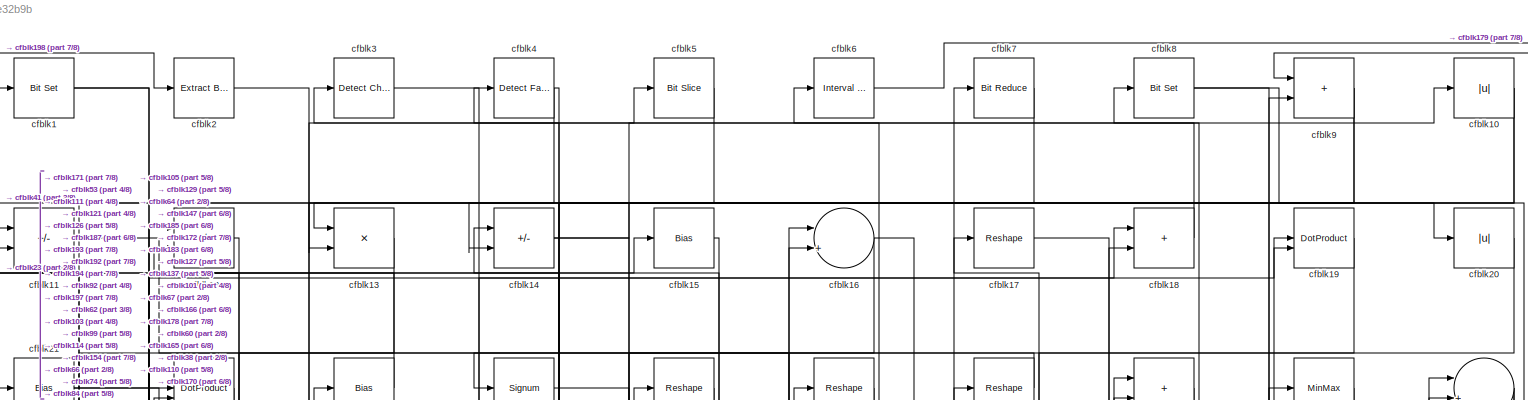
[diagram: root canvas - part 1/8, full width, top band]
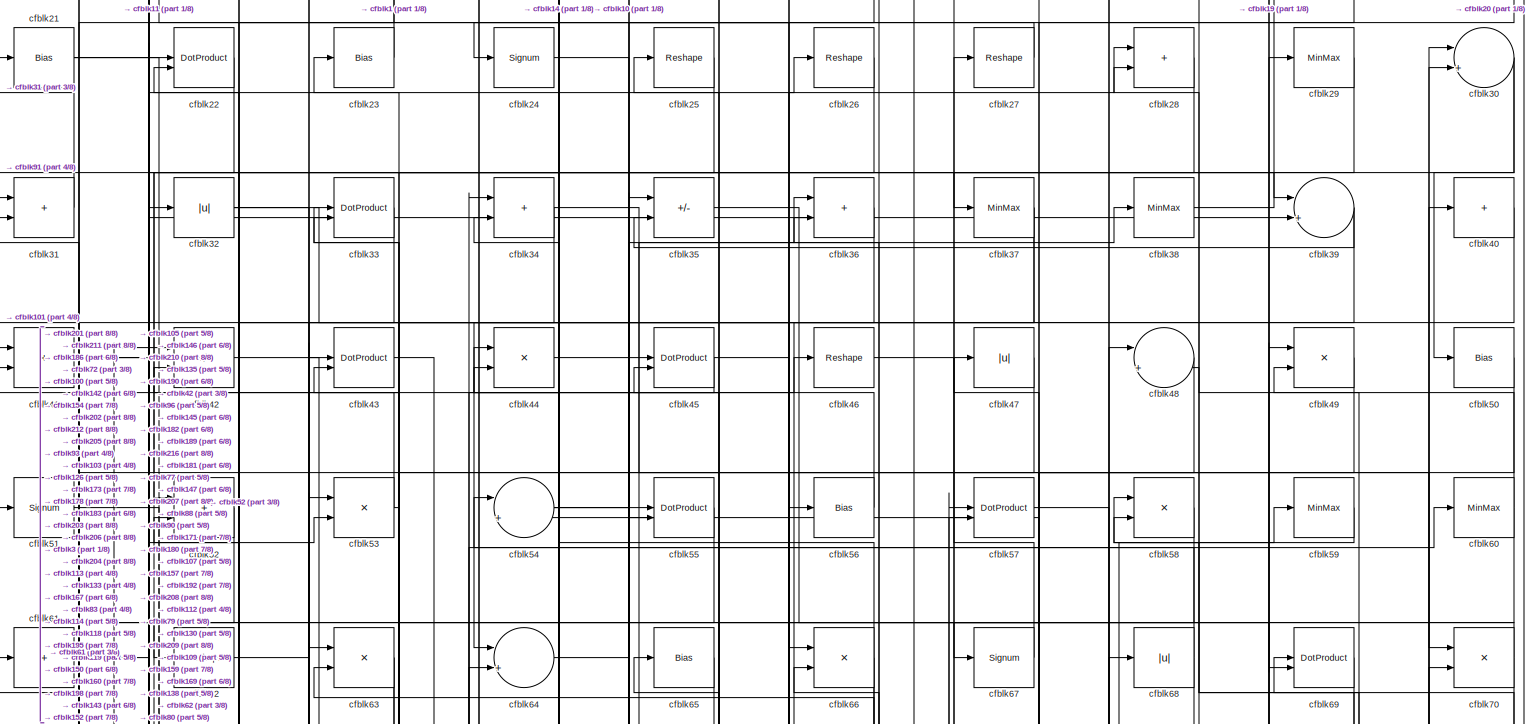
[diagram: root canvas - part 2/8, full width, top band]
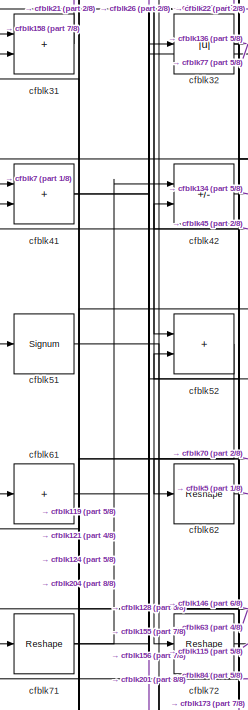
[diagram: root canvas - part 3/8, top left region]
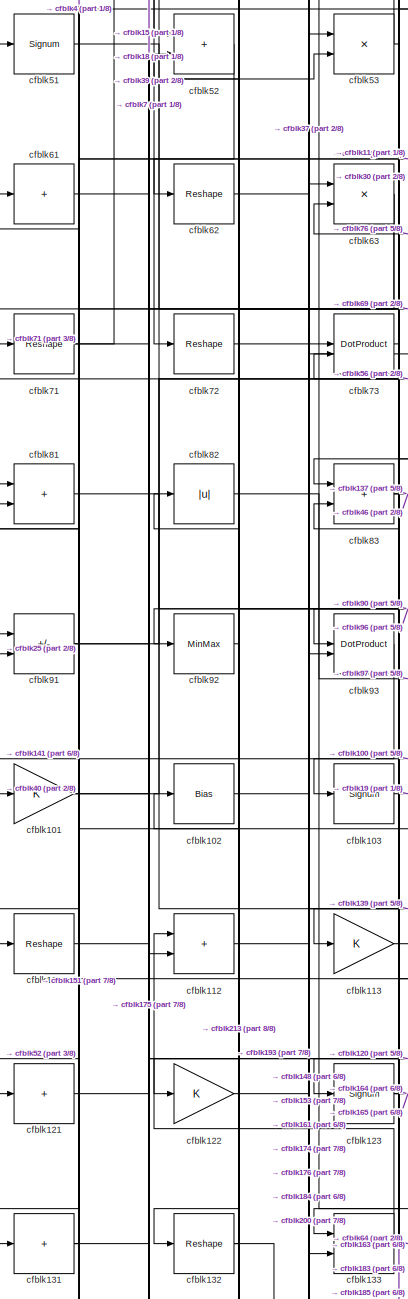
[diagram: root canvas - part 4/8, middle left region]
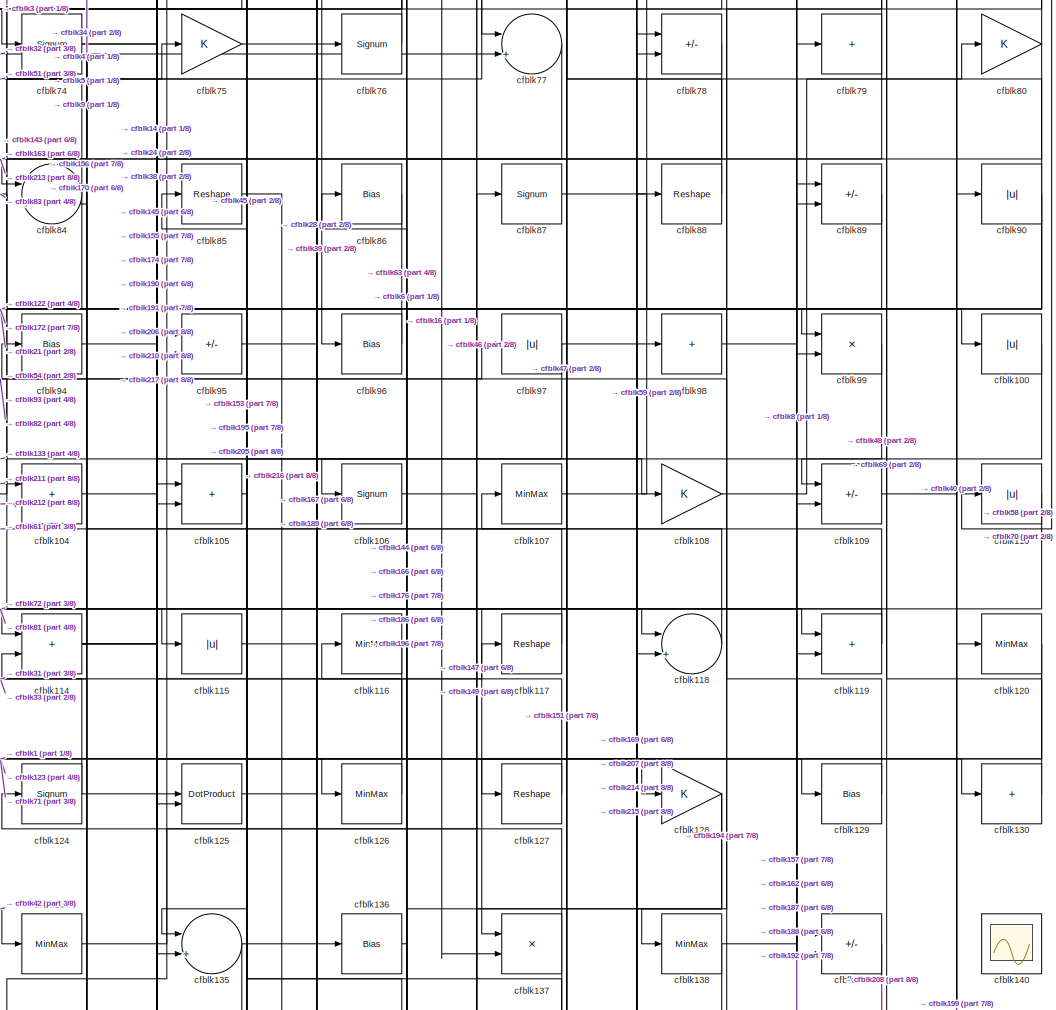
[diagram: root canvas - part 5/8, central region]
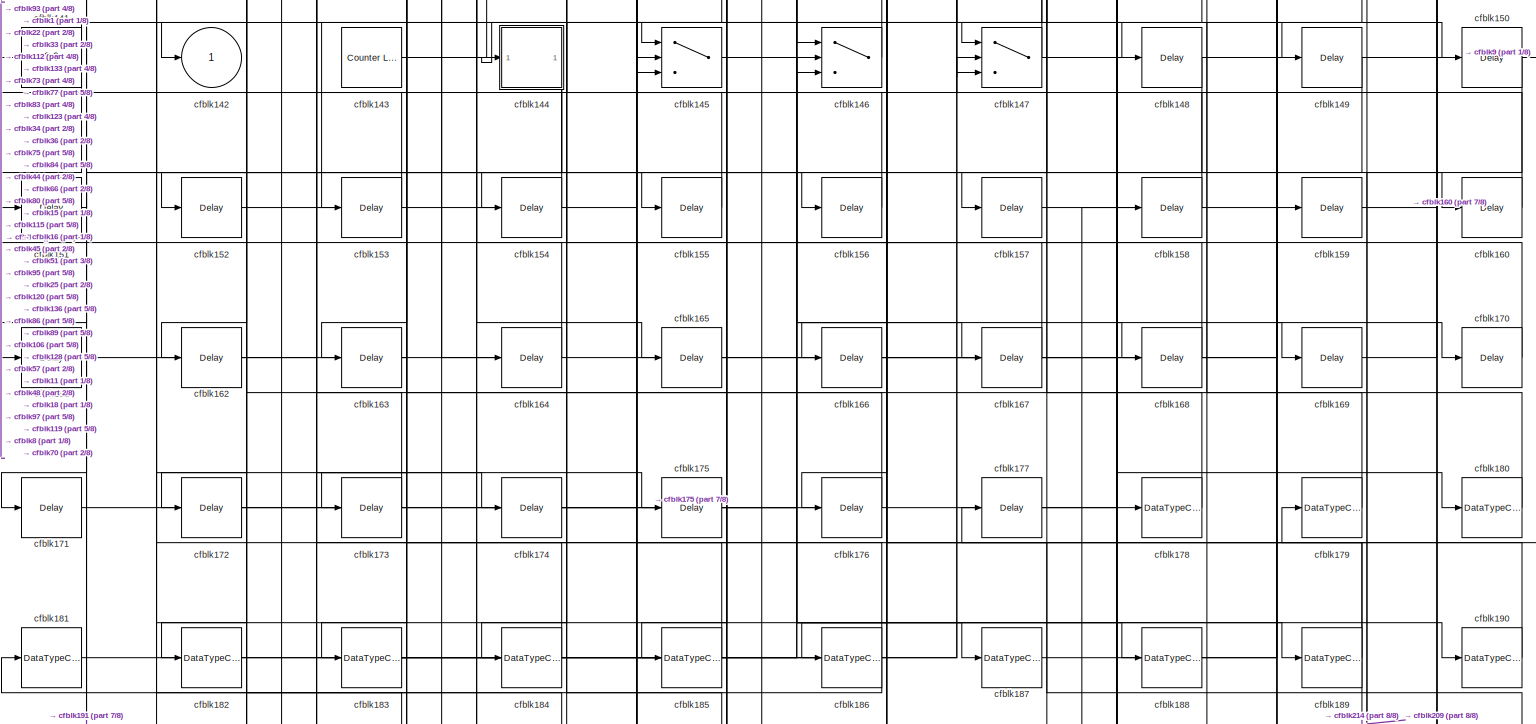
[diagram: root canvas - part 6/8, full width, bottom band]
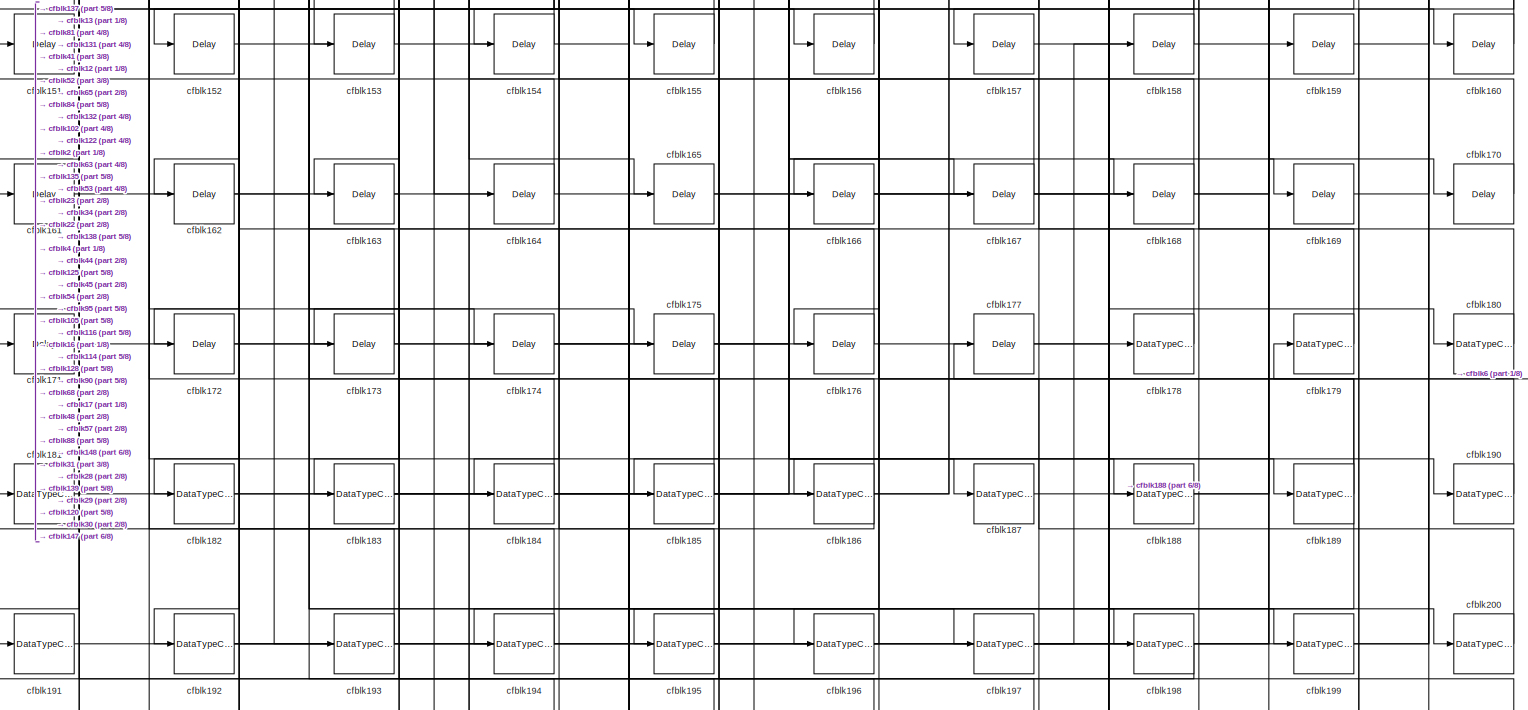
[diagram: root canvas - part 7/8, full width, bottom band]
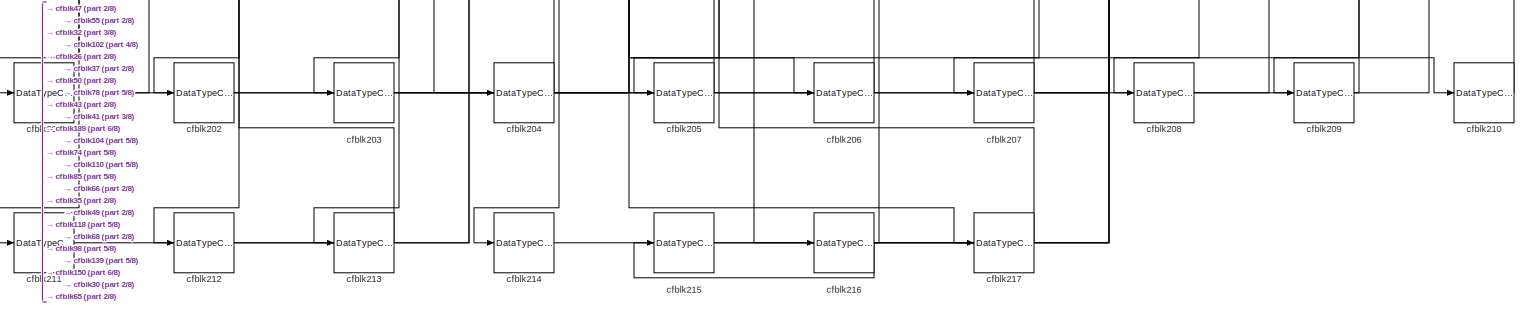
[diagram: root canvas - part 8/8, full width, bottom band]
MODEL slx_066282e32b9b
KIND model
CONFIG AbsTol = auto
CONFIG EnableMultiTasking = off
CONFIG FixedStep = auto
CONFIG MaxStep = auto
CONFIG MinStep = auto
CONFIG RelTol = 1e-3
CONFIG SampleTimeConstraint = Unconstrained
CONFIG SolverName = VariableStepAuto
CONFIG StartTime = 0.0
CONFIG StopTime = 10.0
BLOCK [Reference] cfblk1  REF=simulink/Logic and Bit
Operations/Bit Set
  LibrarySourceBlock = hdlsllib/Logic and Bit\nOperations/Bit Set
  SourceBlock = simulink/Logic and Bit\nOperations/Bit Set
  SourceType = Bit Set
BLOCK [Abs] cfblk10
  SaturateOnIntegerOverflow = off
BLOCK [Abs] cfblk100
  SaturateOnIntegerOverflow = off
BLOCK [Gain] cfblk101
BLOCK [Bias] cfblk102
  Bias = 0.0
  SaturateOnIntegerOverflow = off
BLOCK [Signum] cfblk103
BLOCK [Sum] cfblk104
  IconShape = rectangular
BLOCK [Sum] cfblk105
  IconShape = rectangular
BLOCK [Signum] cfblk106
BLOCK [MinMax] cfblk107
BLOCK [Gain] cfblk108
BLOCK [Sum] cfblk109
  IconShape = rectangular
  Inputs = +-
BLOCK [Sum] cfblk11
  IconShape = rectangular
  Inputs = +-
BLOCK [Abs] cfblk110
  SaturateOnIntegerOverflow = off
BLOCK [Reshape] cfblk111
BLOCK [Sum] cfblk112
  IconShape = rectangular
BLOCK [Gain] cfblk113
BLOCK [Sum] cfblk114
  IconShape = rectangular
BLOCK [Abs] cfblk115
  SaturateOnIntegerOverflow = off
BLOCK [MinMax] cfblk116
BLOCK [Reshape] cfblk117
BLOCK [Sum] cfblk118
  Inputs = |++
BLOCK [Sum] cfblk119
  IconShape = rectangular
BLOCK [Sum] cfblk12
  IconShape = rectangular
  Inputs = +-
BLOCK [MinMax] cfblk120
BLOCK [Sum] cfblk121
  IconShape = rectangular
  Inputs = +
BLOCK [Gain] cfblk122
BLOCK [Signum] cfblk123
BLOCK [Signum] cfblk124
BLOCK [DotProduct] cfblk125
  OutDataTypeStr = Inherit: Inherit via internal rule
BLOCK [MinMax] cfblk126
BLOCK [Reshape] cfblk127
BLOCK [Gain] cfblk128
BLOCK [Bias] cfblk129
  Bias = 0.0
  SaturateOnIntegerOverflow = off
BLOCK [Product] cfblk13
  Inputs = */
  RndMeth = Zero
  SaturateOnIntegerOverflow = on
BLOCK [Sum] cfblk130
  IconShape = rectangular
  Inputs = +
BLOCK [Sum] cfblk131
  IconShape = rectangular
  Inputs = +
BLOCK [Reshape] cfblk132
BLOCK [Product] cfblk133
  Inputs = */
  RndMeth = Zero
  SaturateOnIntegerOverflow = on
BLOCK [MinMax] cfblk134
BLOCK [Sum] cfblk135
  Inputs = |++
BLOCK [Bias] cfblk136
  Bias = 0.0
  SaturateOnIntegerOverflow = off
BLOCK [Product] cfblk137
  Inputs = */
  RndMeth = Zero
  SaturateOnIntegerOverflow = on
BLOCK [MinMax] cfblk138
BLOCK [Sum] cfblk139
  IconShape = rectangular
  Inputs = +-
BLOCK [Sum] cfblk14
  IconShape = rectangular
  Inputs = +-
BLOCK [Scope] cfblk140
  Floating = on
  NumInputPorts = 1
  ScopeSpecificationString = Simulink.scopes.TimeScopeBlockCfg('CurrentConfiguration', extmgr.ConfigurationSet(extmgr.Configuration('Core','General UI',true,'FigureColor',[0.156862745098039 0.156862745098039 0.156862745098039]),extmgr.Configuration('Core','Source UI',true),extmgr.Configuration('Sources','WiredSimulink',true,'DataLoggingVariableName','ScopeData1','DataLoggingSaveFormat','StructureWithTime','DataLoggingLimitDat...<+2713ch>
BLOCK [Display] cfblk141
  Decimation = 1
BLOCK [Outport] cfblk142
  VectorParamsAs1DForOutWhenUnconnected = off
BLOCK [Reference] cfblk143  REF=hdlsllib/Sources/Counter
Limited
  SourceBlock = hdlsllib/Sources/Counter\nLimited
  SourceType = Counter Limited
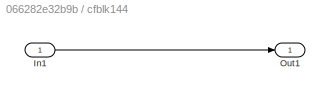
BLOCK [SubSystem] cfblk144
  LibrarySourceBlock = hdlsllib/Ports &\nSubsystems/Subsystem
BLOCK [Inport] cfblk144/In1
BLOCK [Outport] cfblk144/Out1
BLOCK [Switch] cfblk145
  InputSameDT = off
  SaturateOnIntegerOverflow = off
BLOCK [Switch] cfblk146
  InputSameDT = off
  SaturateOnIntegerOverflow = off
BLOCK [Switch] cfblk147
  InputSameDT = off
  SaturateOnIntegerOverflow = off
BLOCK [Delay] cfblk148
  InputPortMap = u0
  SampleTime = 1
BLOCK [Delay] cfblk149
  InputPortMap = u0
  SampleTime = 1
BLOCK [Bias] cfblk15
  Bias = 0.0
  SaturateOnIntegerOverflow = off
BLOCK [Delay] cfblk150
  InputPortMap = u0
  SampleTime = 1
BLOCK [Delay] cfblk151
  InputPortMap = u0
  SampleTime = 1
BLOCK [Delay] cfblk152
  InputPortMap = u0
  SampleTime = 1
BLOCK [Delay] cfblk153
  InputPortMap = u0
  SampleTime = 1
BLOCK [Delay] cfblk154
  InputPortMap = u0
  SampleTime = 1
BLOCK [Delay] cfblk155
  InputPortMap = u0
  SampleTime = 1
BLOCK [Delay] cfblk156
  InputPortMap = u0
  SampleTime = 1
BLOCK [Delay] cfblk157
  InputPortMap = u0
  SampleTime = 1
BLOCK [Delay] cfblk158
  InputPortMap = u0
  SampleTime = 1
BLOCK [Delay] cfblk159
  InputPortMap = u0
  SampleTime = 1
BLOCK [Sum] cfblk16
  Inputs = |++
BLOCK [Delay] cfblk160
  InputPortMap = u0
  SampleTime = 1
BLOCK [Delay] cfblk161
  InputPortMap = u0
  SampleTime = 1
BLOCK [Delay] cfblk162
  InputPortMap = u0
  SampleTime = 1
BLOCK [Delay] cfblk163
  InputPortMap = u0
  SampleTime = 1
BLOCK [Delay] cfblk164
  InputPortMap = u0
  SampleTime = 1
BLOCK [Delay] cfblk165
  InputPortMap = u0
  SampleTime = 1
BLOCK [Delay] cfblk166
  InputPortMap = u0
  SampleTime = 1
BLOCK [Delay] cfblk167
  InputPortMap = u0
  SampleTime = 1
BLOCK [Delay] cfblk168
  InputPortMap = u0
  SampleTime = 1
BLOCK [Delay] cfblk169
  InputPortMap = u0
  SampleTime = 1
BLOCK [Reshape] cfblk17
BLOCK [Delay] cfblk170
  InputPortMap = u0
  SampleTime = 1
BLOCK [Delay] cfblk171
  InputPortMap = u0
  SampleTime = 1
BLOCK [Delay] cfblk172
  InputPortMap = u0
  SampleTime = 1
BLOCK [Delay] cfblk173
  InputPortMap = u0
  SampleTime = 1
BLOCK [Delay] cfblk174
  InputPortMap = u0
  SampleTime = 1
BLOCK [Delay] cfblk175
  InputPortMap = u0
  SampleTime = 1
BLOCK [Delay] cfblk176
  InputPortMap = u0
  SampleTime = 1
BLOCK [Delay] cfblk177
  InputPortMap = u0
  SampleTime = 1
BLOCK [DataTypeConversion] cfblk178
  OutDataTypeStr = uint8
  RndMeth = Floor
  SaturateOnIntegerOverflow = off
BLOCK [DataTypeConversion] cfblk179
  OutDataTypeStr = uint8
  RndMeth = Floor
  SaturateOnIntegerOverflow = off
BLOCK [Sum] cfblk18
  IconShape = rectangular
BLOCK [DataTypeConversion] cfblk180
  OutDataTypeStr = uint8
  RndMeth = Floor
  SaturateOnIntegerOverflow = off
BLOCK [DataTypeConversion] cfblk181
  OutDataTypeStr = uint8
  RndMeth = Floor
  SaturateOnIntegerOverflow = off
BLOCK [DataTypeConversion] cfblk182
  OutDataTypeStr = uint8
  RndMeth = Floor
  SaturateOnIntegerOverflow = off
BLOCK [DataTypeConversion] cfblk183
  RndMeth = Floor
  SaturateOnIntegerOverflow = off
BLOCK [DataTypeConversion] cfblk184
  OutDataTypeStr = uint8
  RndMeth = Floor
  SaturateOnIntegerOverflow = off
BLOCK [DataTypeConversion] cfblk185
  OutDataTypeStr = uint8
  RndMeth = Floor
  SaturateOnIntegerOverflow = off
BLOCK [DataTypeConversion] cfblk186
  RndMeth = Floor
  SaturateOnIntegerOverflow = off
BLOCK [DataTypeConversion] cfblk187
  OutDataTypeStr = uint8
  RndMeth = Floor
  SaturateOnIntegerOverflow = off
BLOCK [DataTypeConversion] cfblk188
  OutDataTypeStr = uint8
  RndMeth = Floor
  SaturateOnIntegerOverflow = off
BLOCK [DataTypeConversion] cfblk189
  RndMeth = Floor
  SaturateOnIntegerOverflow = off
BLOCK [DotProduct] cfblk19
  OutDataTypeStr = Inherit: Inherit via internal rule
BLOCK [DataTypeConversion] cfblk190
  OutDataTypeStr = uint8
  RndMeth = Floor
  SaturateOnIntegerOverflow = off
BLOCK [DataTypeConversion] cfblk191
  OutDataTypeStr = uint8
  RndMeth = Floor
  SaturateOnIntegerOverflow = off
BLOCK [DataTypeConversion] cfblk192
  RndMeth = Floor
  SaturateOnIntegerOverflow = off
BLOCK [DataTypeConversion] cfblk193
  OutDataTypeStr = uint8
  RndMeth = Floor
  SaturateOnIntegerOverflow = off
BLOCK [DataTypeConversion] cfblk194
  OutDataTypeStr = uint8
  RndMeth = Floor
  SaturateOnIntegerOverflow = off
BLOCK [DataTypeConversion] cfblk195
  RndMeth = Floor
  SaturateOnIntegerOverflow = off
BLOCK [DataTypeConversion] cfblk196
  OutDataTypeStr = uint8
  RndMeth = Floor
  SaturateOnIntegerOverflow = off
BLOCK [DataTypeConversion] cfblk197
  RndMeth = Floor
  SaturateOnIntegerOverflow = off
BLOCK [DataTypeConversion] cfblk198
  OutDataTypeStr = uint8
  RndMeth = Floor
  SaturateOnIntegerOverflow = off
BLOCK [DataTypeConversion] cfblk199
  OutDataTypeStr = uint8
  RndMeth = Floor
  SaturateOnIntegerOverflow = off
BLOCK [Reference] cfblk2  REF=simulink/Logic and Bit
Operations/Extract Bits
  LibrarySourceBlock = hdlsllib/Logic and Bit\nOperations/Extract Bits
  SourceBlock = simulink/Logic and Bit\nOperations/Extract Bits
  SourceType = Extract Bits
BLOCK [Abs] cfblk20
  SaturateOnIntegerOverflow = off
BLOCK [DataTypeConversion] cfblk200
  OutDataTypeStr = uint8
  RndMeth = Floor
  SaturateOnIntegerOverflow = off
BLOCK [DataTypeConversion] cfblk201
  RndMeth = Floor
  SaturateOnIntegerOverflow = off
BLOCK [DataTypeConversion] cfblk202
  OutDataTypeStr = uint8
  RndMeth = Floor
  SaturateOnIntegerOverflow = off
BLOCK [DataTypeConversion] cfblk203
  OutDataTypeStr = uint8
  RndMeth = Floor
  SaturateOnIntegerOverflow = off
BLOCK [DataTypeConversion] cfblk204
  RndMeth = Floor
  SaturateOnIntegerOverflow = off
BLOCK [DataTypeConversion] cfblk205
  OutDataTypeStr = uint8
  RndMeth = Floor
  SaturateOnIntegerOverflow = off
BLOCK [DataTypeConversion] cfblk206
  OutDataTypeStr = uint8
  RndMeth = Floor
  SaturateOnIntegerOverflow = off
BLOCK [DataTypeConversion] cfblk207
  RndMeth = Floor
  SaturateOnIntegerOverflow = off
BLOCK [DataTypeConversion] cfblk208
  OutDataTypeStr = uint8
  RndMeth = Floor
  SaturateOnIntegerOverflow = off
BLOCK [DataTypeConversion] cfblk209
  OutDataTypeStr = uint8
  RndMeth = Floor
  SaturateOnIntegerOverflow = off
BLOCK [Bias] cfblk21
  Bias = 0.0
  SaturateOnIntegerOverflow = off
BLOCK [DataTypeConversion] cfblk210
  OutDataTypeStr = uint8
  RndMeth = Floor
  SaturateOnIntegerOverflow = off
BLOCK [DataTypeConversion] cfblk211
  OutDataTypeStr = uint8
  RndMeth = Floor
  SaturateOnIntegerOverflow = off
BLOCK [DataTypeConversion] cfblk212
  OutDataTypeStr = uint8
  RndMeth = Floor
  SaturateOnIntegerOverflow = off
BLOCK [DataTypeConversion] cfblk213
  OutDataTypeStr = uint8
  RndMeth = Floor
  SaturateOnIntegerOverflow = off
BLOCK [DataTypeConversion] cfblk214
  OutDataTypeStr = uint8
  RndMeth = Floor
  SaturateOnIntegerOverflow = off
BLOCK [DataTypeConversion] cfblk215
  OutDataTypeStr = uint8
  RndMeth = Floor
  SaturateOnIntegerOverflow = off
BLOCK [DataTypeConversion] cfblk216
  RndMeth = Floor
  SaturateOnIntegerOverflow = off
BLOCK [DataTypeConversion] cfblk217
  OutDataTypeStr = uint8
  RndMeth = Floor
  SaturateOnIntegerOverflow = off
BLOCK [DotProduct] cfblk22
  OutDataTypeStr = Inherit: Inherit via internal rule
BLOCK [Bias] cfblk23
  Bias = 0.0
  SaturateOnIntegerOverflow = off
BLOCK [Signum] cfblk24
BLOCK [Reshape] cfblk25
BLOCK [Reshape] cfblk26
BLOCK [Reshape] cfblk27
BLOCK [Sum] cfblk28
  IconShape = rectangular
BLOCK [MinMax] cfblk29
BLOCK [Reference] cfblk3  REF=simulink/Logic and Bit
Operations/Detect
Change
  LibrarySourceBlock = hdlsllib/Logic and Bit\nOperations/Detect\nChange
  SourceBlock = simulink/Logic and Bit\nOperations/Detect\nChange
  SourceType = Detect Change
BLOCK [Sum] cfblk30
  Inputs = |++
BLOCK [Sum] cfblk31
  IconShape = rectangular
BLOCK [Abs] cfblk32
  SaturateOnIntegerOverflow = off
BLOCK [DotProduct] cfblk33
  OutDataTypeStr = Inherit: Inherit via internal rule
BLOCK [Sum] cfblk34
  IconShape = rectangular
BLOCK [Sum] cfblk35
  IconShape = rectangular
  Inputs = +-
BLOCK [Sum] cfblk36
  IconShape = rectangular
BLOCK [MinMax] cfblk37
BLOCK [MinMax] cfblk38
BLOCK [Sum] cfblk39
  Inputs = |++
BLOCK [Reference] cfblk4  REF=hdlsllib/Logic and Bit
Operations/Detect Fall
Negative
  SourceBlock = hdlsllib/Logic and Bit\nOperations/Detect Fall\nNegative
  SourceType = Detect Fall Negative
BLOCK [Sum] cfblk40
  IconShape = rectangular
  Inputs = +
BLOCK [Sum] cfblk41
  IconShape = rectangular
BLOCK [Sum] cfblk42
  IconShape = rectangular
  Inputs = +-
BLOCK [DotProduct] cfblk43
  OutDataTypeStr = Inherit: Inherit via internal rule
BLOCK [Product] cfblk44
  Inputs = */
  RndMeth = Zero
  SaturateOnIntegerOverflow = on
BLOCK [DotProduct] cfblk45
  OutDataTypeStr = Inherit: Inherit via internal rule
BLOCK [Reshape] cfblk46
BLOCK [Abs] cfblk47
  SaturateOnIntegerOverflow = off
BLOCK [Sum] cfblk48
  Inputs = |++
BLOCK [Product] cfblk49
  Inputs = */
  RndMeth = Zero
  SaturateOnIntegerOverflow = on
BLOCK [Reference] cfblk5  REF=hdlsllib/Logic and Bit
Operations/Bit Slice
  SourceBlock = hdlsllib/Logic and Bit\nOperations/Bit Slice
  SourceType = Bit Slice
BLOCK [Bias] cfblk50
  Bias = 0.0
  SaturateOnIntegerOverflow = off
BLOCK [Signum] cfblk51
BLOCK [Sum] cfblk52
  IconShape = rectangular
BLOCK [Product] cfblk53
  Inputs = */
  RndMeth = Zero
  SaturateOnIntegerOverflow = on
BLOCK [Sum] cfblk54
  Inputs = |++
BLOCK [DotProduct] cfblk55
  OutDataTypeStr = Inherit: Inherit via internal rule
BLOCK [Bias] cfblk56
  Bias = 0.0
  SaturateOnIntegerOverflow = off
BLOCK [DotProduct] cfblk57
  OutDataTypeStr = Inherit: Inherit via internal rule
BLOCK [Product] cfblk58
  Inputs = */
  RndMeth = Zero
  SaturateOnIntegerOverflow = on
BLOCK [MinMax] cfblk59
BLOCK [Reference] cfblk6  REF=hdlsllib/Logic and Bit
Operations/Interval Test
  SourceBlock = hdlsllib/Logic and Bit\nOperations/Interval Test
  SourceType = Interval Test
BLOCK [MinMax] cfblk60
BLOCK [Sum] cfblk61
  IconShape = rectangular
  Inputs = +
BLOCK [Reshape] cfblk62
BLOCK [Product] cfblk63
  Inputs = */
  RndMeth = Zero
  SaturateOnIntegerOverflow = on
BLOCK [Sum] cfblk64
  Inputs = |++
BLOCK [Bias] cfblk65
  Bias = 0.0
  SaturateOnIntegerOverflow = off
BLOCK [Product] cfblk66
  Inputs = */
  RndMeth = Zero
  SaturateOnIntegerOverflow = on
BLOCK [Signum] cfblk67
BLOCK [Abs] cfblk68
  SaturateOnIntegerOverflow = off
BLOCK [DotProduct] cfblk69
  OutDataTypeStr = Inherit: Inherit via internal rule
BLOCK [Reference] cfblk7  REF=hdlsllib/Logic and Bit
Operations/Bit Reduce
  SourceBlock = hdlsllib/Logic and Bit\nOperations/Bit Reduce
  SourceType = Bit Reduce
BLOCK [Product] cfblk70
  Inputs = */
  RndMeth = Zero
  SaturateOnIntegerOverflow = on
BLOCK [Reshape] cfblk71
BLOCK [Reshape] cfblk72
BLOCK [DotProduct] cfblk73
  OutDataTypeStr = Inherit: Inherit via internal rule
BLOCK [Signum] cfblk74
BLOCK [Gain] cfblk75
BLOCK [Signum] cfblk76
BLOCK [Sum] cfblk77
  Inputs = |++
BLOCK [Sum] cfblk78
  IconShape = rectangular
  Inputs = +-
BLOCK [Sum] cfblk79
  IconShape = rectangular
  Inputs = +
BLOCK [Reference] cfblk8  REF=simulink/Logic and Bit
Operations/Bit Set
  LibrarySourceBlock = hdlsllib/Logic and Bit\nOperations/Bit Set
  SourceBlock = simulink/Logic and Bit\nOperations/Bit Set
  SourceType = Bit Set
BLOCK [Gain] cfblk80
BLOCK [Sum] cfblk81
  IconShape = rectangular
BLOCK [Abs] cfblk82
  SaturateOnIntegerOverflow = off
BLOCK [Sum] cfblk83
  IconShape = rectangular
BLOCK [Sum] cfblk84
  Inputs = |++
BLOCK [Reshape] cfblk85
BLOCK [Bias] cfblk86
  Bias = 0.0
  SaturateOnIntegerOverflow = off
BLOCK [Signum] cfblk87
BLOCK [Reshape] cfblk88
BLOCK [Sum] cfblk89
  IconShape = rectangular
  Inputs = +-
BLOCK [Sum] cfblk9
  IconShape = rectangular
BLOCK [Abs] cfblk90
  SaturateOnIntegerOverflow = off
BLOCK [Sum] cfblk91
  IconShape = rectangular
  Inputs = +-
BLOCK [MinMax] cfblk92
BLOCK [DotProduct] cfblk93
  OutDataTypeStr = Inherit: Inherit via internal rule
BLOCK [Bias] cfblk94
  Bias = 0.0
  SaturateOnIntegerOverflow = off
BLOCK [Sum] cfblk95
  IconShape = rectangular
  Inputs = +-
BLOCK [Bias] cfblk96
  Bias = 0.0
  SaturateOnIntegerOverflow = off
BLOCK [Abs] cfblk97
  SaturateOnIntegerOverflow = off
BLOCK [Sum] cfblk98
  IconShape = rectangular
  Inputs = +
BLOCK [Product] cfblk99
  Inputs = */
  RndMeth = Zero
  SaturateOnIntegerOverflow = on
LINE cfblk100:1 -> cfblk133:1
NET cfblk101:1 -> cfblk39:2, cfblk7:1
LINE cfblk102:1 -> cfblk174:1
LINE cfblk103:1 -> cfblk19:2
LINE cfblk104:1 -> cfblk210:1
LINE cfblk105:1 -> cfblk45:2
LINE cfblk106:1 -> cfblk149:1
LINE cfblk107:1 -> cfblk59:1
LINE cfblk108:1 -> cfblk80:1
LINE cfblk109:1 -> cfblk40:1
NET cfblk10:1 -> cfblk13:2, cfblk14:2
LINE cfblk110:1 -> cfblk205:1
LINE cfblk111:1 -> cfblk18:1
LINE cfblk112:1 -> cfblk148:1
LINE cfblk113:1 -> cfblk60:1
NET cfblk114:1 -> cfblk130:1, cfblk135:2, cfblk38:1, cfblk4:1
LINE cfblk115:1 -> cfblk167:1
LINE cfblk116:1 -> cfblk195:1
LINE cfblk117:1 -> cfblk107:1
LINE cfblk118:1 -> cfblk34:2
NET cfblk119:1 -> cfblk114:1, cfblk61:1
LINE cfblk11:1 -> cfblk66:1
NET cfblk120:1 -> cfblk123:1, cfblk166:1
LINE cfblk121:1 -> cfblk15:1
LINE cfblk122:1 -> cfblk200:1
NET cfblk123:1 -> cfblk164:1, cfblk165:1
NET cfblk124:1 -> cfblk117:1, cfblk31:2
LINE cfblk125:1 -> cfblk76:1
LINE cfblk126:1 -> cfblk33:1
LINE cfblk127:1 -> cfblk6:1
NET cfblk128:1 -> cfblk147:3, cfblk176:1
LINE cfblk129:1 -> cfblk94:1
LINE cfblk12:1 -> cfblk192:1
LINE cfblk130:1 -> cfblk69:1
NET cfblk131:1 -> cfblk175:1, cfblk81:1
NET cfblk132:1 -> cfblk193:1, cfblk82:1
NET cfblk133:1 -> cfblk112:1, cfblk64:2
LINE cfblk134:1 -> cfblk87:1
NET cfblk135:1 -> cfblk153:1, cfblk28:1
LINE cfblk136:1 -> cfblk144:1
NET cfblk137:1 -> cfblk124:1, cfblk151:1
NET cfblk138:1 -> cfblk109:2, cfblk194:1
LINE cfblk139:1 -> cfblk208:1
LINE cfblk13:1 -> cfblk171:1
NET cfblk143:1 -> cfblk36:1, cfblk75:1
LINE cfblk144/In1:1 -> cfblk144/Out1:1
NET cfblk144:1 -> cfblk161:1, cfblk162:1
LINE cfblk145:1 -> cfblk168:1
LINE cfblk146:1 -> cfblk25:1
NET cfblk147:1 -> cfblk11:1, cfblk9:1
LINE cfblk148:1 -> cfblk191:1
LINE cfblk149:1 -> cfblk184:1
NET cfblk14:1 -> cfblk129:1, cfblk20:1
LINE cfblk150:1 -> cfblk209:1
LINE cfblk151:1 -> cfblk81:2
LINE cfblk152:1 -> cfblk45:1
LINE cfblk153:1 -> cfblk53:1
LINE cfblk154:1 -> cfblk22:2
LINE cfblk155:1 -> cfblk105:1
LINE cfblk156:1 -> cfblk114:2
LINE cfblk157:1 -> cfblk139:1
LINE cfblk158:1 -> cfblk31:1
LINE cfblk159:1 -> cfblk30:1
LINE cfblk15:1 -> cfblk185:1
LINE cfblk160:1 -> cfblk147:2
LINE cfblk161:1 -> cfblk133:2
LINE cfblk162:1 -> cfblk119:2
LINE cfblk163:1 -> cfblk83:2
LINE cfblk164:1 -> cfblk91:1
LINE cfblk165:1 -> cfblk9:2
LINE cfblk166:1 -> cfblk18:2
LINE cfblk167:1 -> cfblk34:1
LINE cfblk168:1 -> cfblk146:2
LINE cfblk169:1 -> cfblk70:2
NET cfblk16:1 -> cfblk105:2, cfblk137:2
LINE cfblk170:1 -> cfblk84:2
LINE cfblk171:1 -> cfblk48:1
LINE cfblk172:1 -> cfblk16:2
LINE cfblk173:1 -> cfblk52:2
LINE cfblk174:1 -> cfblk125:1
LINE cfblk175:1 -> cfblk188:1
LINE cfblk176:1 -> cfblk63:1
LINE cfblk177:1 -> cfblk199:1
LINE cfblk178:1 -> cfblk23:1
LINE cfblk179:1 -> cfblk17:1
LINE cfblk17:1 -> cfblk178:1
LINE cfblk180:1 -> cfblk28:2
LINE cfblk181:1 -> cfblk57:1
LINE cfblk182:1 -> cfblk57:2
NET cfblk183:1 -> cfblk146:3, cfblk16:1, cfblk33:2
LINE cfblk184:1 -> cfblk73:1
LINE cfblk185:1 -> cfblk73:2
NET cfblk186:1 -> cfblk181:1, cfblk22:1
LINE cfblk187:1 -> cfblk89:1
LINE cfblk188:1 -> cfblk89:2
NET cfblk189:1 -> cfblk214:1, cfblk36:2, cfblk86:1
LINE cfblk18:1 -> cfblk8:1
LINE cfblk190:1 -> cfblk95:1
LINE cfblk191:1 -> cfblk95:2
NET cfblk192:1 -> cfblk120:1, cfblk29:1
LINE cfblk193:1 -> cfblk12:1
LINE cfblk194:1 -> cfblk12:2
NET cfblk195:1 -> cfblk44:2, cfblk88:1
LINE cfblk196:1 -> cfblk116:1
NET cfblk197:1 -> cfblk158:1, cfblk159:1
LINE cfblk198:1 -> cfblk2:1
LINE cfblk199:1 -> cfblk90:1
LINE cfblk19:1 -> cfblk92:1
NET cfblk1:1 -> cfblk126:1, cfblk187:1
LINE cfblk200:1 -> cfblk177:1
NET cfblk201:1 -> cfblk32:1, cfblk68:1
LINE cfblk202:1 -> cfblk55:1
LINE cfblk203:1 -> cfblk55:2
NET cfblk204:1 -> cfblk30:2, cfblk41:2
LINE cfblk205:1 -> cfblk43:1
LINE cfblk206:1 -> cfblk43:2
NET cfblk207:1 -> cfblk35:1, cfblk98:1
LINE cfblk208:1 -> cfblk49:1
LINE cfblk209:1 -> cfblk49:2
LINE cfblk20:1 -> cfblk67:1
LINE cfblk210:1 -> cfblk65:1
LINE cfblk211:1 -> cfblk104:1
LINE cfblk212:1 -> cfblk104:2
LINE cfblk213:1 -> cfblk102:1
LINE cfblk214:1 -> cfblk78:1
LINE cfblk215:1 -> cfblk78:2
NET cfblk216:1 -> cfblk118:2, cfblk215:1, cfblk66:2
LINE cfblk217:1 -> cfblk85:1
NET cfblk21:1 -> cfblk100:1, cfblk39:1
LINE cfblk22:1 -> cfblk52:1
LINE cfblk23:1 -> cfblk1:1
LINE cfblk24:1 -> cfblk119:1
LINE cfblk25:1 -> cfblk91:2
LINE cfblk26:1 -> cfblk202:1
LINE cfblk27:1 -> cfblk24:1
LINE cfblk28:1 -> cfblk37:1
LINE cfblk29:1 -> cfblk72:1
LINE cfblk2:1 -> cfblk197:1
NET cfblk30:1 -> cfblk103:1, cfblk50:1
LINE cfblk31:1 -> cfblk21:1
NET cfblk32:1 -> cfblk136:1, cfblk77:2
LINE cfblk33:1 -> cfblk142:1
NET cfblk34:1 -> cfblk173:1, cfblk70:1
LINE cfblk35:1 -> cfblk69:2
LINE cfblk36:1 -> cfblk64:1
NET cfblk37:1 -> cfblk212:1, cfblk93:2
LINE cfblk38:1 -> cfblk19:1
NET cfblk39:1 -> cfblk35:2, cfblk96:1
LINE cfblk3:1 -> cfblk99:2
LINE cfblk40:1 -> cfblk101:1
NET cfblk41:1 -> cfblk155:1, cfblk156:1
LINE cfblk42:1 -> cfblk134:1
LINE cfblk43:1 -> cfblk204:1
LINE cfblk44:1 -> cfblk150:1
NET cfblk45:1 -> cfblk190:1, cfblk42:2
LINE cfblk46:1 -> cfblk77:1
LINE cfblk47:1 -> cfblk211:1
LINE cfblk48:1 -> cfblk147:1
LINE cfblk49:1 -> cfblk207:1
NET cfblk4:1 -> cfblk111:1, cfblk154:1
LINE cfblk50:1 -> cfblk203:1
LINE cfblk51:1 -> cfblk146:1
LINE cfblk52:1 -> cfblk121:1
NET cfblk53:1 -> cfblk113:1, cfblk11:2
NET cfblk54:1 -> cfblk160:1, cfblk198:1
LINE cfblk55:1 -> cfblk201:1
LINE cfblk56:1 -> cfblk44:1
LINE cfblk57:1 -> cfblk180:1
LINE cfblk58:1 -> cfblk135:1
LINE cfblk59:1 -> cfblk58:1
LINE cfblk5:1 -> cfblk84:1
NET cfblk60:1 -> cfblk3:1, cfblk83:1
LINE cfblk61:1 -> cfblk26:1
LINE cfblk62:1 -> cfblk5:1
NET cfblk63:1 -> cfblk131:1, cfblk71:1
LINE cfblk64:1 -> cfblk10:1
LINE cfblk65:1 -> cfblk152:1
NET cfblk66:1 -> cfblk145:2, cfblk14:1, cfblk182:1
LINE cfblk67:1 -> cfblk27:1
NET cfblk68:1 -> cfblk157:1, cfblk54:1
LINE cfblk69:1 -> cfblk112:2
LINE cfblk6:1 -> cfblk179:1
NET cfblk70:1 -> cfblk138:1, cfblk62:1
NET cfblk71:1 -> cfblk128:1, cfblk42:1
LINE cfblk72:1 -> cfblk115:1
LINE cfblk73:1 -> cfblk183:1
NET cfblk74:1 -> cfblk206:1, cfblk217:1
LINE cfblk75:1 -> cfblk118:1
LINE cfblk76:1 -> cfblk63:2
LINE cfblk77:1 -> cfblk163:1
LINE cfblk78:1 -> cfblk213:1
NET cfblk79:1 -> cfblk106:1, cfblk48:2
LINE cfblk7:1 -> cfblk41:1
NET cfblk80:1 -> cfblk145:3, cfblk58:2
LINE cfblk81:1 -> cfblk139:2
LINE cfblk82:1 -> cfblk97:1
NET cfblk83:1 -> cfblk137:1, cfblk46:1
NET cfblk84:1 -> cfblk172:1, cfblk51:1
LINE cfblk85:1 -> cfblk216:1
LINE cfblk86:1 -> cfblk125:2
LINE cfblk87:1 -> cfblk99:1
LINE cfblk88:1 -> cfblk47:1
LINE cfblk89:1 -> cfblk186:1
NET cfblk8:1 -> cfblk110:1, cfblk170:1
NET cfblk90:1 -> cfblk122:1, cfblk127:1, cfblk196:1, cfblk54:2
NET cfblk91:1 -> cfblk53:2, cfblk56:1
LINE cfblk92:1 -> cfblk132:1
LINE cfblk93:1 -> cfblk141:1
LINE cfblk94:1 -> cfblk108:1
LINE cfblk95:1 -> cfblk189:1
LINE cfblk96:1 -> cfblk93:1
NET cfblk97:1 -> cfblk145:1, cfblk169:1
LINE cfblk98:1 -> cfblk79:1
LINE cfblk99:1 -> cfblk109:1
NET cfblk9:1 -> cfblk13:1, cfblk74:1
note: NET lines group one-source signal fan-out (src -> all destinations, sorted); 1:1 wires keep LINE
